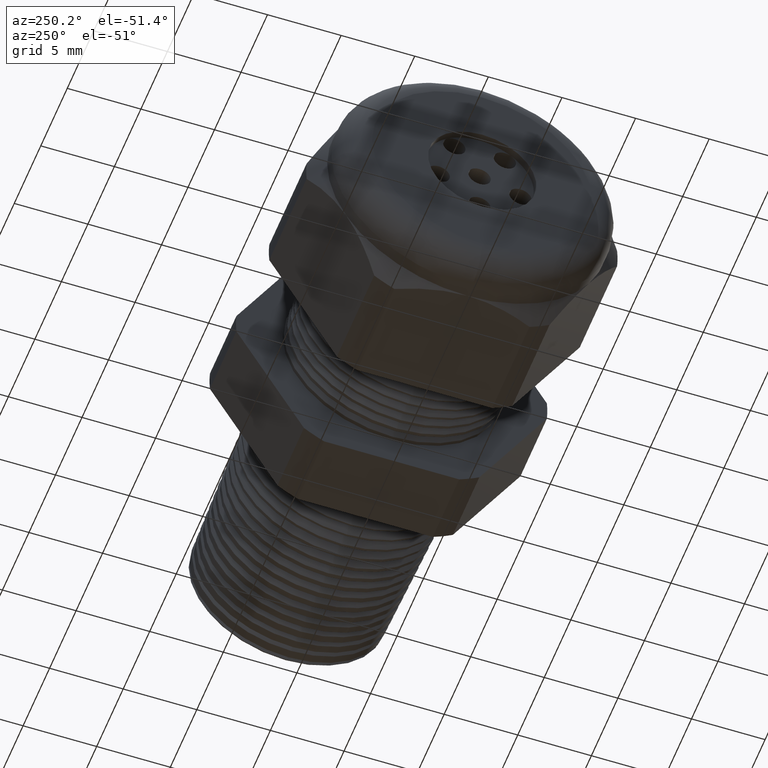
[diagram: clean part render]
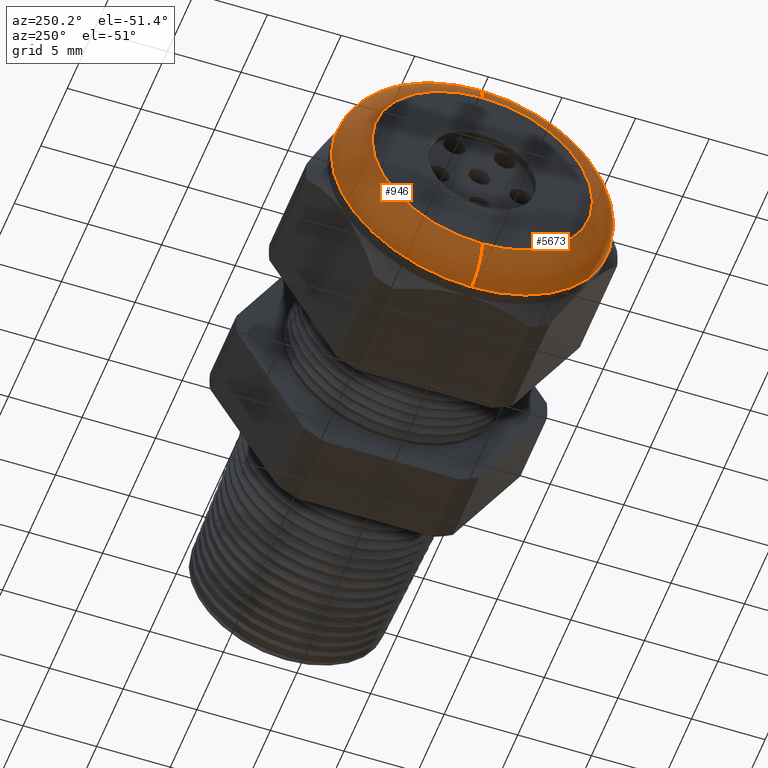
[diagram: same view with one multi-face feature highlighted, each face labeled with its STEP entity id]
A machine part, auxiliary view. The highlighted faces form ONE feature: a constant-radius fillet chain: 2 tangent blend faces with common blend radius 2.032 mm. The faces share edges in the B-rep.
Their STEP definitions:
[1] entity #946 (Torus):
#868 = VERTEX_POINT ( 'NONE', #3397 ) ;
#923 = ORIENTED_EDGE ( 'NONE', *, *, #924, .T. ) ;
#924 = EDGE_CURVE ( 'NONE', #950, #925, #3547, .T. ) ;
#925 = VERTEX_POINT ( 'NONE', #3542 ) ;
#926 = ORIENTED_EDGE ( 'NONE', *, *, #927, .F. ) ;
#927 = EDGE_CURVE ( 'NONE', #928, #925, #3541, .T. ) ;
#928 = VERTEX_POINT ( 'NONE', #3536 ) ;
#929 = ORIENTED_EDGE ( 'NONE', *, *, #930, .F. ) ;
#930 = EDGE_CURVE ( 'NONE', #868, #928, #3535, .T. ) ;
#946 = ADVANCED_FACE ( 'NONE', ( #3567 ), #3565, .T. ) ;
#947 = EDGE_LOOP ( 'NONE', ( #948, #923, #926, #929 ) ) ;
#948 = ORIENTED_EDGE ( 'NONE', *, *, #949, .F. ) ;
#949 = EDGE_CURVE ( 'NONE', #950, #868, #3561, .T. ) ;
#950 = VERTEX_POINT ( 'NONE', #3556 ) ;
#3397 = CARTESIAN_POINT ( 'NONE',  ( -1.100000000000000100, 4.592425496802576100E-017, 0.3750000000000001100 ) ) ;
#3531 = DIRECTION ( 'NONE',  ( 0.0000000000000000000, 0.0000000000000000000, -1.000000000000000000 ) ) ;
#3532 = DIRECTION ( 'NONE',  ( 0.0000000000000000000, -1.000000000000000000, 0.0000000000000000000 ) ) ;
#3533 = CARTESIAN_POINT ( 'NONE',  ( -1.100000000000000100, 0.0000000000000000000, 0.2950000000000001000 ) ) ;
#3534 = AXIS2_PLACEMENT_3D ( 'NONE', #3533, #3532, #3531 ) ;
#3535 = CIRCLE ( 'NONE', #3534, 0.08000000000000000200 ) ;
#3536 = CARTESIAN_POINT ( 'NONE',  ( -1.179999999999999900, 0.0000000000000000000, 0.2950000000000001000 ) ) ;
#3537 = DIRECTION ( 'NONE',  ( 0.0000000000000000000, 0.0000000000000000000, 1.000000000000000000 ) ) ;
#3538 = DIRECTION ( 'NONE',  ( -1.000000000000000000, 0.0000000000000000000, 0.0000000000000000000 ) ) ;
#3539 = CARTESIAN_POINT ( 'NONE',  ( -1.179999999999999900, 0.0000000000000000000, 0.0000000000000000000 ) ) ;
#3540 = AXIS2_PLACEMENT_3D ( 'NONE', #3539, #3538, #3537 ) ;
#3541 = CIRCLE ( 'NONE', #3540, 0.2950000000000001000 ) ;
#3542 = CARTESIAN_POINT ( 'NONE',  ( -1.179999999999999900, 4.102566777143634000E-017, -0.2950000000000001000 ) ) ;
#3543 = DIRECTION ( 'NONE',  ( 0.0000000000000000000, -1.224646799147353500E-016, 1.000000000000000000 ) ) ;
#3544 = DIRECTION ( 'NONE',  ( 0.0000000000000000000, 1.000000000000000000, 1.224646799147353200E-016 ) ) ;
#3545 = CARTESIAN_POINT ( 'NONE',  ( -1.100000000000000100, 3.612708057484693200E-017, -0.2950000000000001000 ) ) ;
#3546 = AXIS2_PLACEMENT_3D ( 'NONE', #3545, #3544, #3543 ) ;
#3547 = CIRCLE ( 'NONE', #3546, 0.08000000000000000200 ) ;
#3556 = CARTESIAN_POINT ( 'NONE',  ( -1.100000000000000100, 0.0000000000000000000, -0.3750000000000001100 ) ) ;
#3557 = DIRECTION ( 'NONE',  ( 0.0000000000000000000, 0.0000000000000000000, 1.000000000000000000 ) ) ;
#3558 = DIRECTION ( 'NONE',  ( 1.000000000000000000, 0.0000000000000000000, 0.0000000000000000000 ) ) ;
#3559 = CARTESIAN_POINT ( 'NONE',  ( -1.100000000000000100, 0.0000000000000000000, 0.0000000000000000000 ) ) ;
#3560 = AXIS2_PLACEMENT_3D ( 'NONE', #3559, #3558, #3557 ) ;
#3561 = CIRCLE ( 'NONE', #3560, 0.3750000000000001100 ) ;
#3562 = DIRECTION ( 'NONE',  ( 0.0000000000000000000, 0.0000000000000000000, 1.000000000000000000 ) ) ;
#3563 = DIRECTION ( 'NONE',  ( -1.000000000000000000, 0.0000000000000000000, 0.0000000000000000000 ) ) ;
#3564 = AXIS2_PLACEMENT_3D ( 'NONE', #3566, #3563, #3562 ) ;
#3565 = TOROIDAL_SURFACE ( 'NONE', #3564, 0.2950000000000001000, 0.08000000000000000200 ) ;
#3566 = CARTESIAN_POINT ( 'NONE',  ( -1.100000000000000100, 0.0000000000000000000, 0.0000000000000000000 ) ) ;
#3567 = FACE_OUTER_BOUND ( 'NONE', #947, .T. ) ;
[2] entity #5673 (Torus):
#171 = EDGE_CURVE ( 'NONE', #925, #928, #2241, .T. ) ;
#232 = EDGE_CURVE ( 'NONE', #868, #950, #2398, .T. ) ;
#868 = VERTEX_POINT ( 'NONE', #3397 ) ;
#924 = EDGE_CURVE ( 'NONE', #950, #925, #3547, .T. ) ;
#925 = VERTEX_POINT ( 'NONE', #3542 ) ;
#928 = VERTEX_POINT ( 'NONE', #3536 ) ;
#930 = EDGE_CURVE ( 'NONE', #868, #928, #3535, .T. ) ;
#950 = VERTEX_POINT ( 'NONE', #3556 ) ;
#2240 = AXIS2_PLACEMENT_3D ( 'NONE', #2246, #2303, #2302 ) ;
#2241 = CIRCLE ( 'NONE', #2240, 0.2950000000000001000 ) ;
#2246 = CARTESIAN_POINT ( 'NONE',  ( -1.179999999999999900, 0.0000000000000000000, 0.0000000000000000000 ) ) ;
#2302 = DIRECTION ( 'NONE',  ( 0.0000000000000000000, 0.0000000000000000000, 1.000000000000000000 ) ) ;
#2303 = DIRECTION ( 'NONE',  ( -1.000000000000000000, 0.0000000000000000000, 0.0000000000000000000 ) ) ;
#2391 = DIRECTION ( 'NONE',  ( 0.0000000000000000000, 0.0000000000000000000, 1.000000000000000000 ) ) ;
#2392 = DIRECTION ( 'NONE',  ( 1.000000000000000000, 0.0000000000000000000, 0.0000000000000000000 ) ) ;
#2393 = CARTESIAN_POINT ( 'NONE',  ( -1.100000000000000100, 0.0000000000000000000, 0.0000000000000000000 ) ) ;
#2394 = AXIS2_PLACEMENT_3D ( 'NONE', #2393, #2392, #2391 ) ;
#2398 = CIRCLE ( 'NONE', #2394, 0.3750000000000001100 ) ;
#3397 = CARTESIAN_POINT ( 'NONE',  ( -1.100000000000000100, 4.592425496802576100E-017, 0.3750000000000001100 ) ) ;
#3531 = DIRECTION ( 'NONE',  ( 0.0000000000000000000, 0.0000000000000000000, -1.000000000000000000 ) ) ;
#3532 = DIRECTION ( 'NONE',  ( 0.0000000000000000000, -1.000000000000000000, 0.0000000000000000000 ) ) ;
#3533 = CARTESIAN_POINT ( 'NONE',  ( -1.100000000000000100, 0.0000000000000000000, 0.2950000000000001000 ) ) ;
#3534 = AXIS2_PLACEMENT_3D ( 'NONE', #3533, #3532, #3531 ) ;
#3535 = CIRCLE ( 'NONE', #3534, 0.08000000000000000200 ) ;
#3536 = CARTESIAN_POINT ( 'NONE',  ( -1.179999999999999900, 0.0000000000000000000, 0.2950000000000001000 ) ) ;
#3542 = CARTESIAN_POINT ( 'NONE',  ( -1.179999999999999900, 4.102566777143634000E-017, -0.2950000000000001000 ) ) ;
#3543 = DIRECTION ( 'NONE',  ( 0.0000000000000000000, -1.224646799147353500E-016, 1.000000000000000000 ) ) ;
#3544 = DIRECTION ( 'NONE',  ( 0.0000000000000000000, 1.000000000000000000, 1.224646799147353200E-016 ) ) ;
#3545 = CARTESIAN_POINT ( 'NONE',  ( -1.100000000000000100, 3.612708057484693200E-017, -0.2950000000000001000 ) ) ;
#3546 = AXIS2_PLACEMENT_3D ( 'NONE', #3545, #3544, #3543 ) ;
#3547 = CIRCLE ( 'NONE', #3546, 0.08000000000000000200 ) ;
#3556 = CARTESIAN_POINT ( 'NONE',  ( -1.100000000000000100, 0.0000000000000000000, -0.3750000000000001100 ) ) ;
#5440 = TOROIDAL_SURFACE ( 'NONE', #5506, 0.2950000000000001000, 0.08000000000000000200 ) ;
#5441 = FACE_OUTER_BOUND ( 'NONE', #5679, .T. ) ;
#5503 = DIRECTION ( 'NONE',  ( 0.0000000000000000000, 0.0000000000000000000, 1.000000000000000000 ) ) ;
#5504 = DIRECTION ( 'NONE',  ( -1.000000000000000000, 0.0000000000000000000, 0.0000000000000000000 ) ) ;
#5505 = CARTESIAN_POINT ( 'NONE',  ( -1.100000000000000100, 0.0000000000000000000, 0.0000000000000000000 ) ) ;
#5506 = AXIS2_PLACEMENT_3D ( 'NONE', #5505, #5504, #5503 ) ;
#5669 = ORIENTED_EDGE ( 'NONE', *, *, #924, .F. ) ;
#5673 = ADVANCED_FACE ( 'NONE', ( #5441 ), #5440, .T. ) ;
#5679 = EDGE_LOOP ( 'NONE', ( #5669, #5692, #5690, #5691 ) ) ;
#5690 = ORIENTED_EDGE ( 'NONE', *, *, #930, .T. ) ;
#5691 = ORIENTED_EDGE ( 'NONE', *, *, #171, .F. ) ;
#5692 = ORIENTED_EDGE ( 'NONE', *, *, #232, .F. ) ;